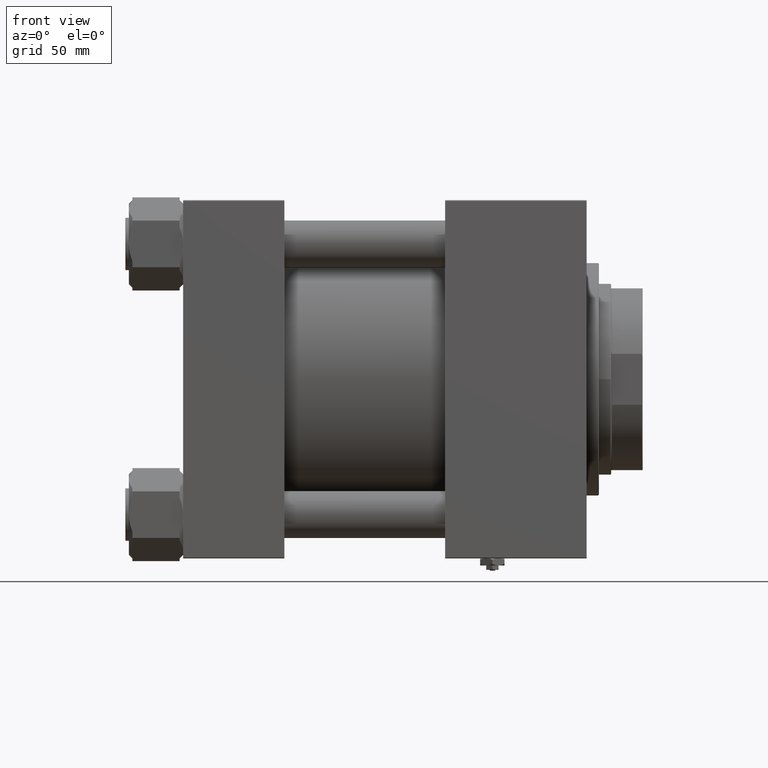
[diagram: clean part render]
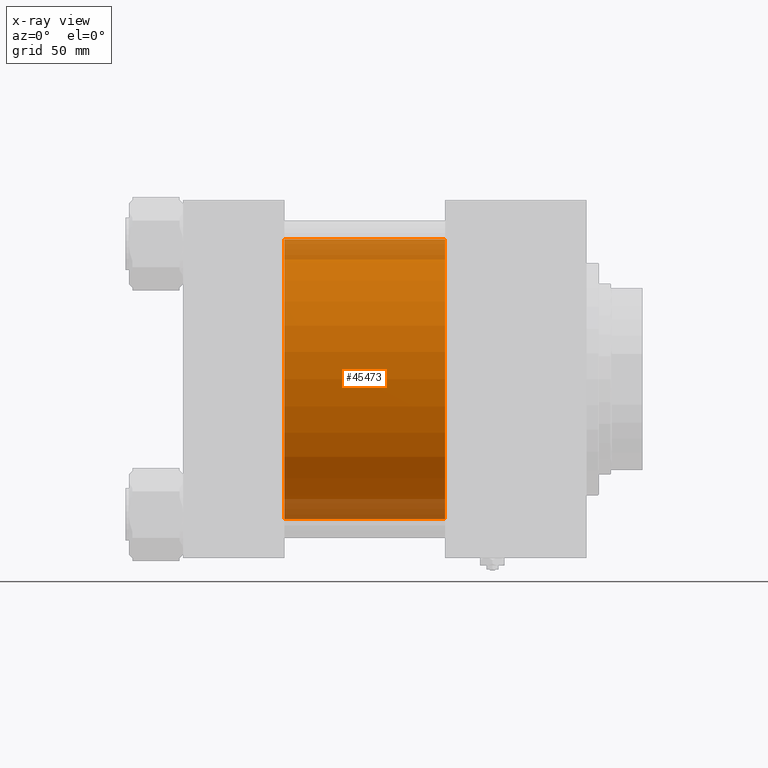
[diagram: x-ray — body ghosted, one internal face saturated and labeled with its STEP entity id]
A machine part, front view, then the same camera in x-ray: the body is ghosted and one INTERNAL B-rep face — a face not visible from any outside direction — is saturated and labeled: STEP entity #45473.
In plain terms, the highlighted cylindrical surface (partial cylindrical patch) has radius 80 mm, axis along (-1, -0, -0).
Its self-contained STEP definition (entity closure, byte-faithful):
#535 = CARTESIAN_POINT ( 'NONE',  ( 150.0000000000000000, 7.195089179213615410E-15, -80.00000000000000000 ) ) ;
#4447 = CARTESIAN_POINT ( 'NONE',  ( 58.00000000000000000, -2.602085213965210642E-15, 80.00000000000000000 ) ) ;
#5036 = CARTESIAN_POINT ( 'NONE',  ( 150.0000000000000000, -2.602085213965210642E-15, 0.000000000000000000 ) ) ;
#5294 = VERTEX_POINT ( 'NONE', #535 ) ;
#6295 = EDGE_LOOP ( 'NONE', ( #49425, #14172, #34938, #51105 ) ) ;
#6964 = VERTEX_POINT ( 'NONE', #16847 ) ;
#8124 = DIRECTION ( 'NONE',  ( 1.000000000000000000, 0.000000000000000000, 0.000000000000000000 ) ) ;
#8671 = EDGE_CURVE ( 'NONE', #6964, #11603, #26549, .T. ) ;
#9977 = CARTESIAN_POINT ( 'NONE',  ( 150.0000000000000000, 7.195089179213615410E-15, -80.00000000000000000 ) ) ;
#10486 = CYLINDRICAL_SURFACE ( 'NONE', #20483, 80.00000000000000000 ) ;
#10748 = FACE_OUTER_BOUND ( 'NONE', #6295, .T. ) ;
#10818 = AXIS2_PLACEMENT_3D ( 'NONE', #5036, #40960, #44674 ) ;
#11603 = VERTEX_POINT ( 'NONE', #4447 ) ;
#14172 = ORIENTED_EDGE ( 'NONE', *, *, #28082, .T. ) ;
#15241 = EDGE_CURVE ( 'NONE', #11603, #46180, #17492, .T. ) ;
#15273 = CARTESIAN_POINT ( 'NONE',  ( 150.0000000000000000, -2.602085213965210642E-15, 0.000000000000000000 ) ) ;
#16847 = CARTESIAN_POINT ( 'NONE',  ( 150.0000000000000000, -2.602085213965210642E-15, 80.00000000000000000 ) ) ;
#17492 = CIRCLE ( 'NONE', #47186, 80.00000000000000000 ) ;
#18504 = LINE ( 'NONE', #9977, #22065 ) ;
#19318 = CIRCLE ( 'NONE', #10818, 80.00000000000000000 ) ;
#19854 = CARTESIAN_POINT ( 'NONE',  ( 58.00000000000000000, -2.602085213965210642E-15, 0.000000000000000000 ) ) ;
#20483 = AXIS2_PLACEMENT_3D ( 'NONE', #15273, #38687, #31473 ) ;
#22065 = VECTOR ( 'NONE', #50648, 1000.000000000000000 ) ;
#26549 = LINE ( 'NONE', #47004, #47947 ) ;
#28082 = EDGE_CURVE ( 'NONE', #5294, #46180, #18504, .T. ) ;
#31473 = DIRECTION ( 'NONE',  ( 0.000000000000000000, 0.000000000000000000, 1.000000000000000000 ) ) ;
#31771 = DIRECTION ( 'NONE',  ( -1.000000000000000000, -0.000000000000000000, -0.000000000000000000 ) ) ;
#33277 = EDGE_CURVE ( 'NONE', #6964, #5294, #19318, .T. ) ;
#34938 = ORIENTED_EDGE ( 'NONE', *, *, #15241, .F. ) ;
#38015 = CARTESIAN_POINT ( 'NONE',  ( 58.00000000000000000, 7.195089179213615410E-15, -80.00000000000000000 ) ) ;
#38687 = DIRECTION ( 'NONE',  ( -1.000000000000000000, -0.000000000000000000, -0.000000000000000000 ) ) ;
#40960 = DIRECTION ( 'NONE',  ( 1.000000000000000000, 0.000000000000000000, 0.000000000000000000 ) ) ;
#44674 = DIRECTION ( 'NONE',  ( 0.000000000000000000, 0.000000000000000000, -1.000000000000000000 ) ) ;
#45473 = ADVANCED_FACE ( 'NONE', ( #10748 ), #10486, .F. ) ;
#46180 = VERTEX_POINT ( 'NONE', #38015 ) ;
#47004 = CARTESIAN_POINT ( 'NONE',  ( 150.0000000000000000, -2.602085213965210642E-15, 80.00000000000000000 ) ) ;
#47186 = AXIS2_PLACEMENT_3D ( 'NONE', #19854, #8124, #51996 ) ;
#47947 = VECTOR ( 'NONE', #31771, 1000.000000000000000 ) ;
#49425 = ORIENTED_EDGE ( 'NONE', *, *, #33277, .T. ) ;
#50648 = DIRECTION ( 'NONE',  ( -1.000000000000000000, -0.000000000000000000, -0.000000000000000000 ) ) ;
#51105 = ORIENTED_EDGE ( 'NONE', *, *, #8671, .F. ) ;
#51996 = DIRECTION ( 'NONE',  ( 0.000000000000000000, 0.000000000000000000, -1.000000000000000000 ) ) ;